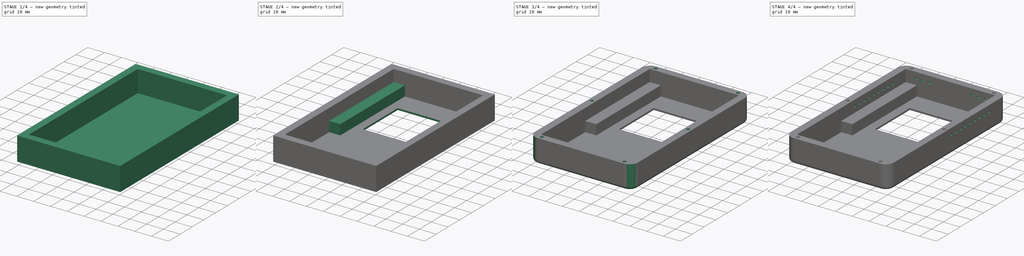
[diagram: build sequence overview — one tinted view per stage of 4, left to right]
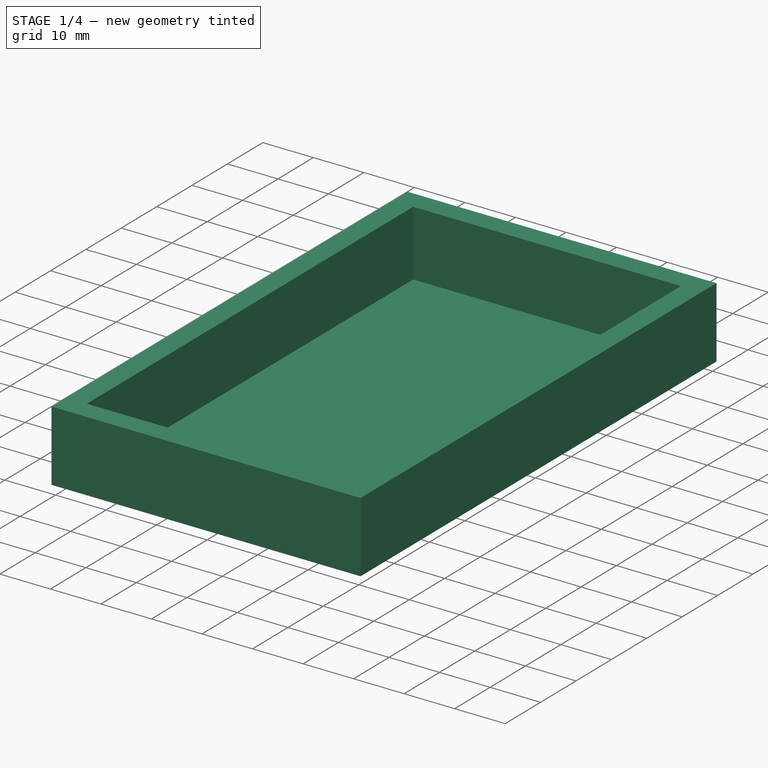
[diagram: stage 1 of 4 — iso view after this stage's code; geometry added in this stage tinted green]
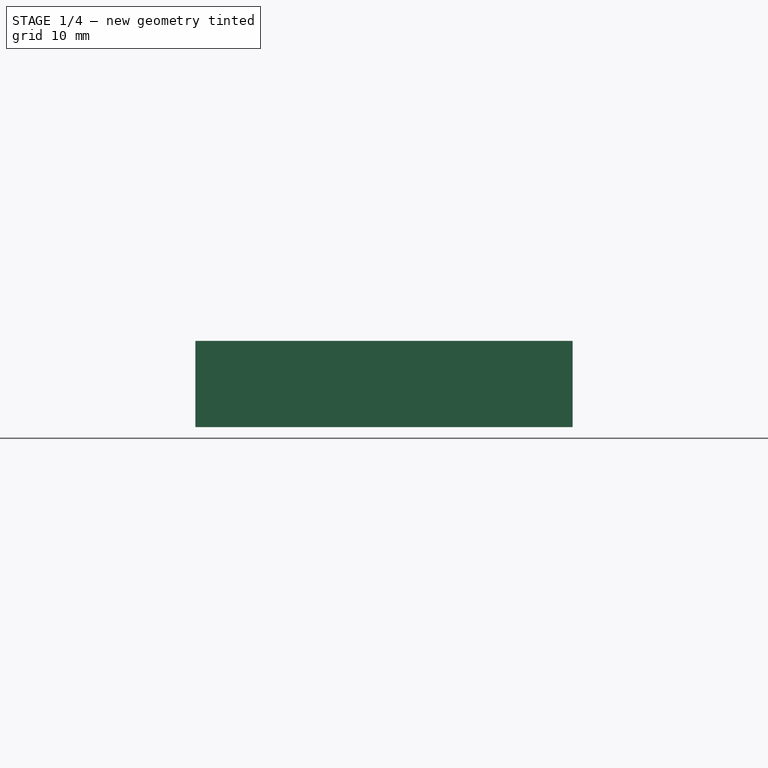
[diagram: stage 1 of 4 — front view after this stage's code; geometry added in this stage tinted green]
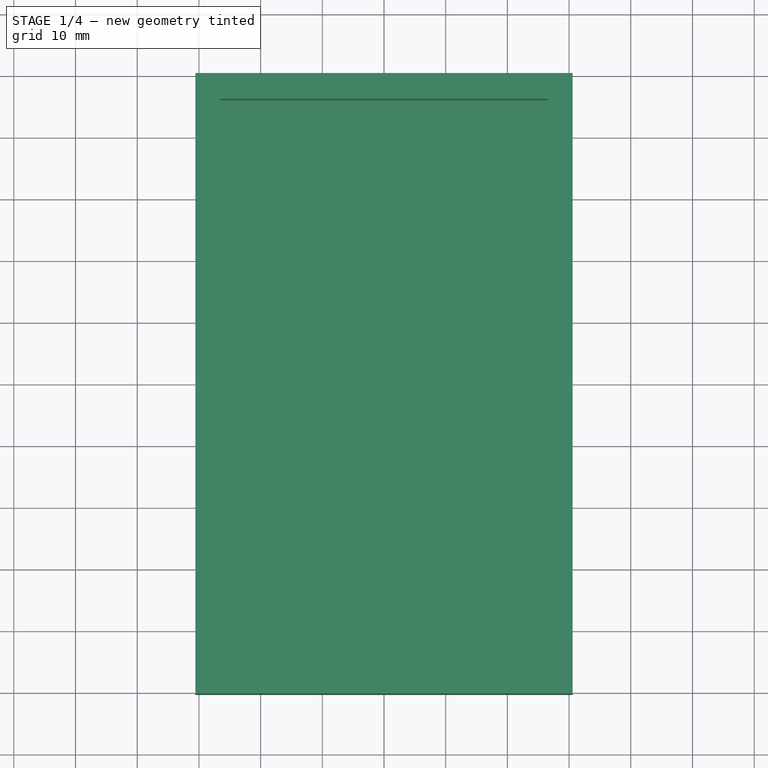
[diagram: stage 1 of 4 — top view after this stage's code; geometry added in this stage tinted green]
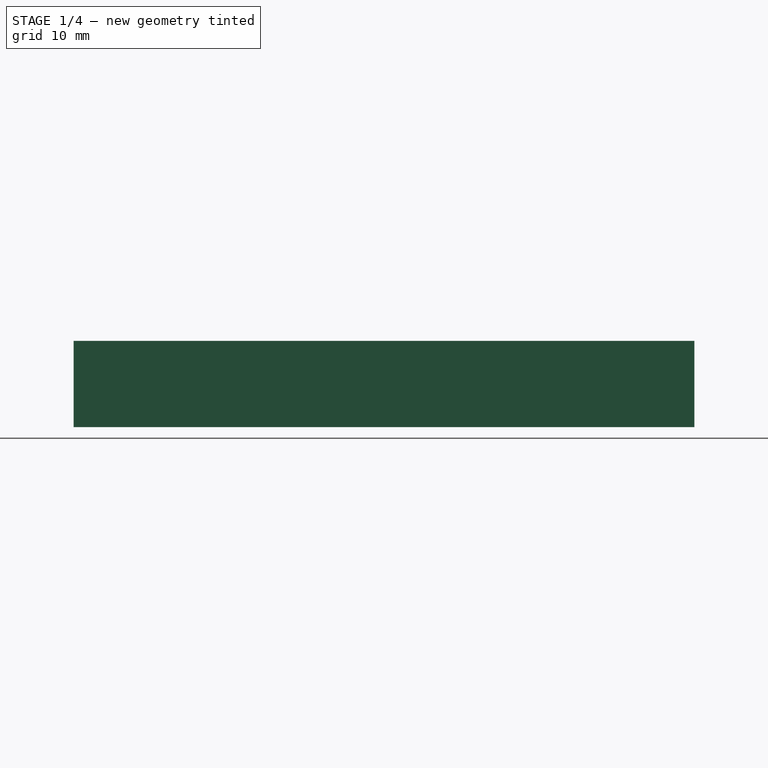
[diagram: stage 1 of 4 — right view after this stage's code; geometry added in this stage tinted green]
FCSTD DOCUMENT  (FreeCAD 0.20R29410 (Git))
Label: enclosure
License: All rights reserved
LicenseURL: http://en.wikipedia.org/wiki/All_rights_reserved
objects: Sketcher::SketchObject×7, PartDesign::Pocket×4, PartDesign::Pad×3, PartDesign::Fillet×2, App::Link×1, PartDesign::Body×1
note: 26 computed .brp shape members not serialized (recipe doc carries the construction recipe); baked Part::Feature solids carry a one-line shape summary decoded from their .brp

FEATURE [Sketcher::SketchObject] Sketch
  FullyConstrained = true
  MapMode = 5
  Support = -> [XY_Plane]
  sketch-geometry (4):
    g0: LineSegment StartX=-30.575 StartY=50.3 StartZ=0 EndX=30.575 EndY=50.3 EndZ=0
    g1: LineSegment StartX=30.575 StartY=50.3 StartZ=0 EndX=30.575 EndY=-50.3 EndZ=0
    g2: LineSegment StartX=30.575 StartY=-50.3 StartZ=0 EndX=-30.575 EndY=-50.3 EndZ=0
    g3: LineSegment StartX=-30.575 StartY=-50.3 StartZ=0 EndX=-30.575 EndY=50.3 EndZ=0
  constraints (10):
    c: Coincident(g0,g1)
    c: Coincident(g1,g2)
    c: Coincident(g2,g3)
    c: Coincident(g3,g0)
    c: Horizontal(g0)
    c: Vertical(g3)
    c: DistanceX(g2,g2) = 61.15
    c: Symmetric(g2,g1,g-2)
    c: DistanceY(g1,g1) = 100.6
    c: Symmetric(g0,g1,g-1)
FEATURE [PartDesign::Pad] Pad
  Direction = (0,0,1)
  Length = 1
  Length2 = 10
  Profile = -> Sketch
  ReferenceAxis = -> Sketch [N_Axis]
  Type = 0
FEATURE [Sketcher::SketchObject] Sketch001
  ExternalGeometry = -> [Pad]
  FullyConstrained = true
  MapMode = 5
  Placement = pos=(0,0,1) rot=(0,0,1;0rad)
  Support = -> [Pad]
  sketch-geometry (8):
    g0: LineSegment StartX=-26.5 StartY=46.1 StartZ=0 EndX=26.5 EndY=46.1 EndZ=0
    g1: LineSegment StartX=26.5 StartY=46.1 StartZ=0 EndX=26.5 EndY=-46.1 EndZ=0
    g2: LineSegment StartX=26.5 StartY=-46.1 StartZ=0 EndX=-26.5 EndY=-46.1 EndZ=0
    g3: LineSegment StartX=-26.5 StartY=-46.1 StartZ=0 EndX=-26.5 EndY=46.1 EndZ=0
    g4: LineSegment StartX=-30.575 StartY=50.3 StartZ=0 EndX=30.575 EndY=50.3 EndZ=0
    g5: LineSegment StartX=30.575 StartY=50.3 StartZ=0 EndX=30.575 EndY=-50.3 EndZ=0
    g6: LineSegment StartX=30.575 StartY=-50.3 StartZ=0 EndX=-30.575 EndY=-50.3 EndZ=0
    g7: LineSegment StartX=-30.575 StartY=-50.3 StartZ=0 EndX=-30.575 EndY=50.3 EndZ=0
  constraints (20):
    c: Coincident(g0,g1)
    c: Coincident(g1,g2)
    c: Coincident(g2,g3)
    c: Coincident(g3,g0)
    c: Horizontal(g0)
    c: Vertical(g1)
    c: Coincident(g4,g5)
    c: Coincident(g5,g6)
    c: Coincident(g6,g7)
    c: Coincident(g7,g4)
    c: Horizontal(g4)
    c: Horizontal(g6)
    c: Vertical(g5)
    c: Vertical(g7)
    c: Coincident(g4,g-3)
    c: Coincident(g5,g-4)
    c: DistanceX(g0,g0) = 53
    c: DistanceY(g1,g1) = 92.2
    c: Symmetric(g2,g1,g-2)
    c: Symmetric(g0,g2,g-1)
FEATURE [PartDesign::Pad] Pad001
  BaseFeature = -> Pad
  Direction = (0,0,1)
  Length = 13
  Length2 = 10
  Profile = -> Sketch001
  ReferenceAxis = -> Sketch001 [N_Axis]
  Type = 0
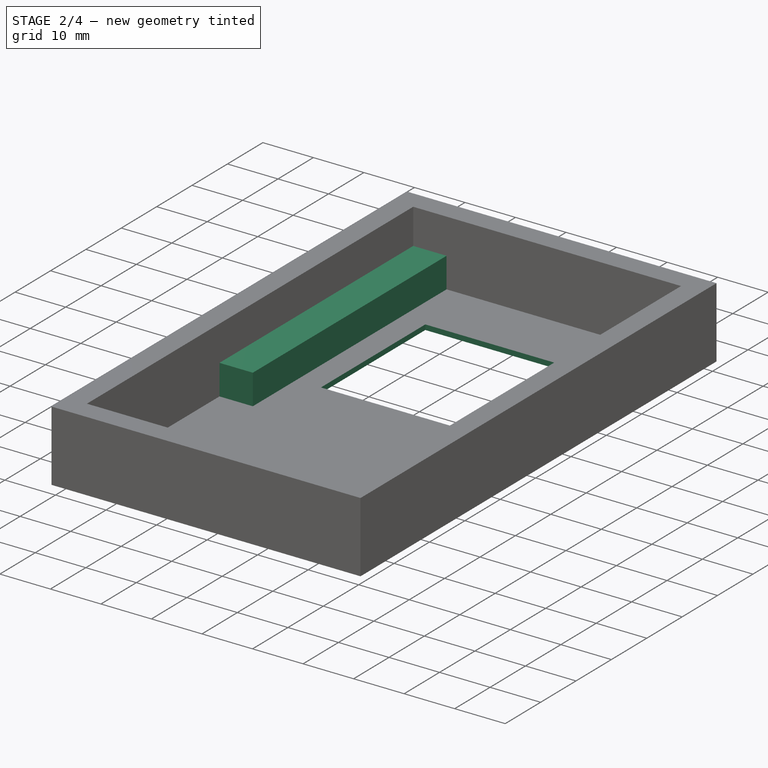
[diagram: stage 2 of 4 — iso view after this stage's code; geometry added in this stage tinted green]
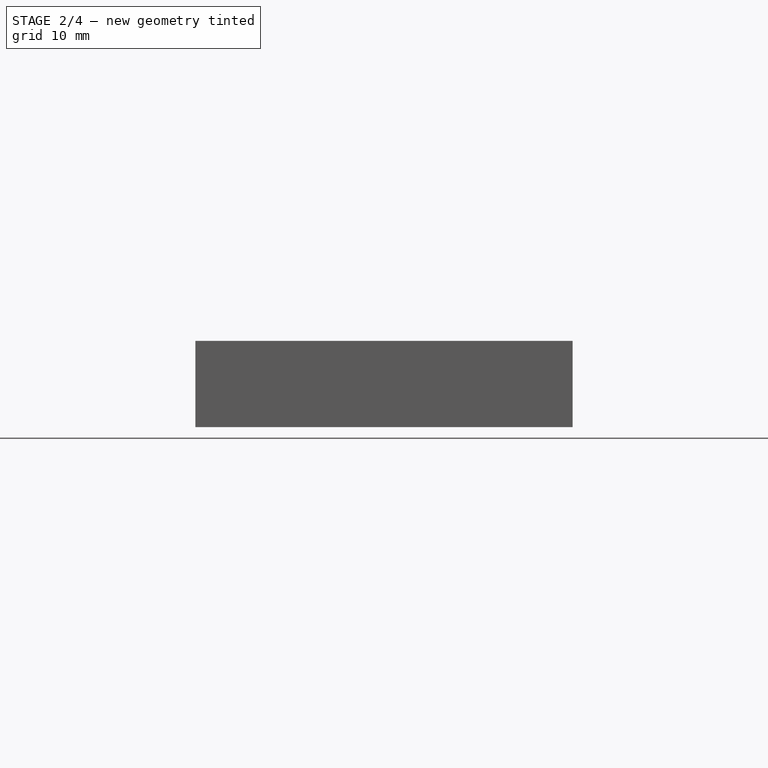
[diagram: stage 2 of 4 — front view after this stage's code; geometry added in this stage tinted green]
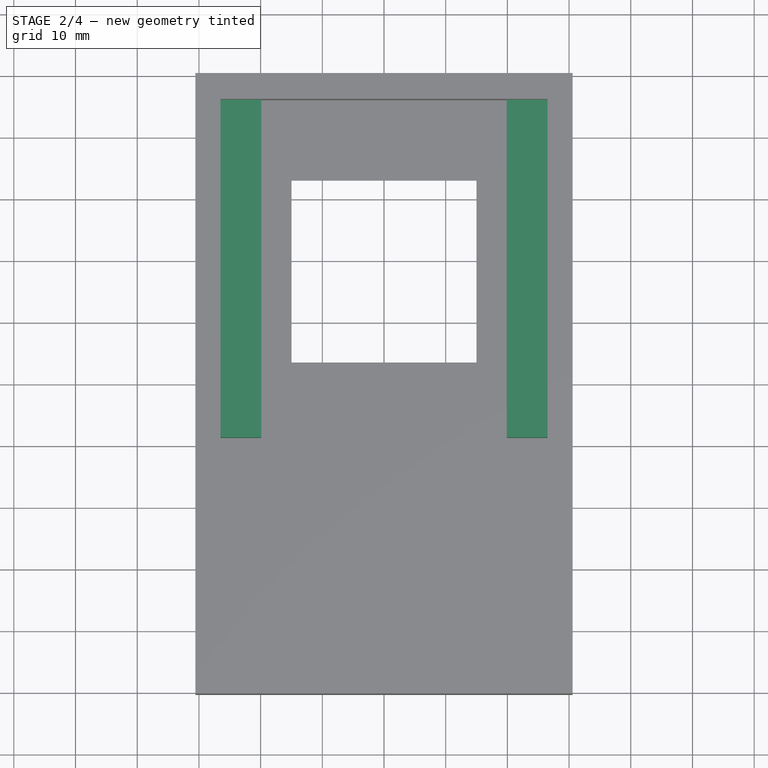
[diagram: stage 2 of 4 — top view after this stage's code; geometry added in this stage tinted green]
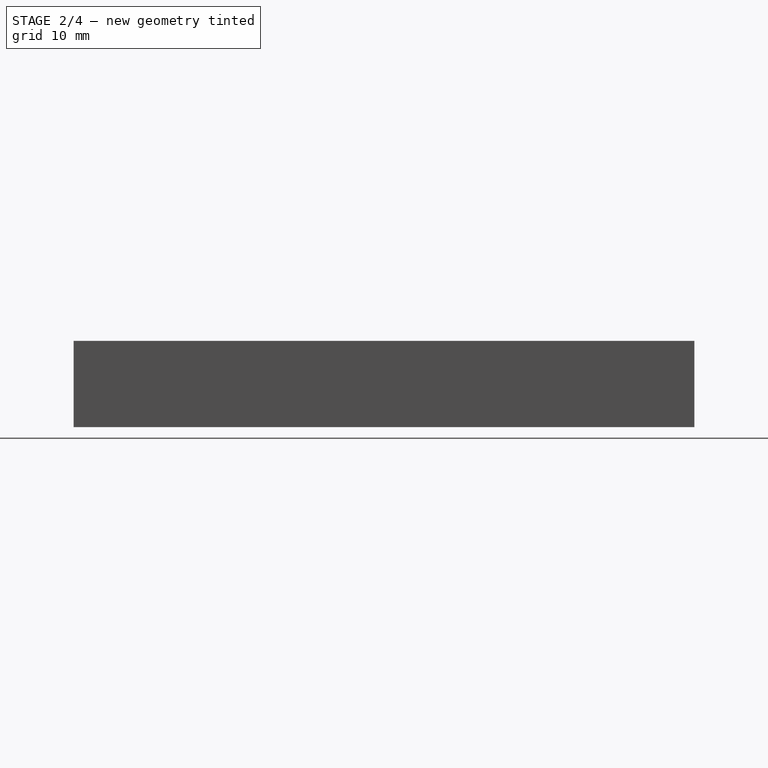
[diagram: stage 2 of 4 — right view after this stage's code; geometry added in this stage tinted green]
FEATURE [App::Link] Link  label="enclosure001"
  LinkedObject = -> Body
FEATURE [Sketcher::SketchObject] Sketch002
  ExternalGeometry = -> [Pad001]
  FullyConstrained = true
  MapMode = 5
  Placement = pos=(0,0,1) rot=(0,0,1;0rad)
  Support = -> [Pad001]
  sketch-geometry (8):
    g0: LineSegment StartX=19.9 StartY=46.1 StartZ=0 EndX=26.5 EndY=46.1 EndZ=0
    g1: LineSegment StartX=26.5 StartY=46.1 StartZ=0 EndX=26.5 EndY=-8.65 EndZ=0
    g2: LineSegment StartX=26.5 StartY=-8.65 StartZ=0 EndX=19.9 EndY=-8.65 EndZ=0
    g3: LineSegment StartX=19.9 StartY=-8.65 StartZ=0 EndX=19.9 EndY=46.1 EndZ=0
    g4: LineSegment StartX=-19.9 StartY=46.1 StartZ=0 EndX=-26.5 EndY=46.1 EndZ=0
    g5: LineSegment StartX=-26.5 StartY=46.1 StartZ=0 EndX=-26.5 EndY=-8.65 EndZ=0
    g6: LineSegment StartX=-26.5 StartY=-8.65 StartZ=0 EndX=-19.9 EndY=-8.65 EndZ=0
    g7: LineSegment StartX=-19.9 StartY=-8.65 StartZ=0 EndX=-19.9 EndY=46.1 EndZ=0
  constraints (21):
    c: Coincident(g0,g1)
    c: Coincident(g1,g2)
    c: Coincident(g2,g3)
    c: Coincident(g3,g0)
    c: Horizontal(g0)
    c: Horizontal(g2)
    c: Vertical(g1)
    c: Vertical(g3)
    c: Coincident(g0,g-3)
    c: Coincident(g4,g5)
    c: Coincident(g5,g6)
    c: Coincident(g6,g7)
    c: Coincident(g7,g4)
    c: Horizontal(g6)
    c: Vertical(g5)
    c: Vertical(g7)
    c: Coincident(g4,g-4)
    c: DistanceX(g4,g0) = 39.8
    c: DistanceY(g3,g3) = 54.75
    c: Equal(g7,g3)
    c: Symmetric(g4,g0,g-2)
FEATURE [PartDesign::Pad] Pad002
  BaseFeature = -> Pad001
  Direction = (0,0,1)
  Length = 6
  Length2 = 10
  Profile = -> Sketch002
  ReferenceAxis = -> Sketch002 [N_Axis]
  Type = 0
FEATURE [Sketcher::SketchObject] Sketch003
  ExternalGeometry = -> [Pad002]
  FullyConstrained = true
  MapMode = 5
  Placement = pos=(0,0,1) rot=(0,0,1;0rad)
  Support = -> [Pad002]
  sketch-geometry (4):
    g0: LineSegment StartX=-15 StartY=33.1 StartZ=0 EndX=15 EndY=33.1 EndZ=0
    g1: LineSegment StartX=15 StartY=33.1 StartZ=0 EndX=15 EndY=3.6 EndZ=0
    g2: LineSegment StartX=15 StartY=3.6 StartZ=0 EndX=-15 EndY=3.6 EndZ=0
    g3: LineSegment StartX=-15 StartY=3.6 StartZ=0 EndX=-15 EndY=33.1 EndZ=0
  constraints (12):
    c: Coincident(g0,g1)
    c: Coincident(g1,g2)
    c: Coincident(g2,g3)
    c: Coincident(g3,g0)
    c: Horizontal(g2)
    c: Vertical(g1)
    c: Vertical(g3)
    c: DistanceX(g0,g0) = 30
    c: DistanceY(g0,g-3) = 13
    c: DistanceY(g1,g1) = 29.5
    c: DistanceX(g-1,g0) = 15
    c: Horizontal(g0)
FEATURE [PartDesign::Pocket] Pocket
  BaseFeature = -> Pad002
  Direction = (0,0,-1)
  Length = 0
  Length2 = 5
  Profile = -> Sketch003
  ReferenceAxis = -> Sketch003 [N_Axis]
  Type = 3
  UpToFace = -> Pad002 [Face4]
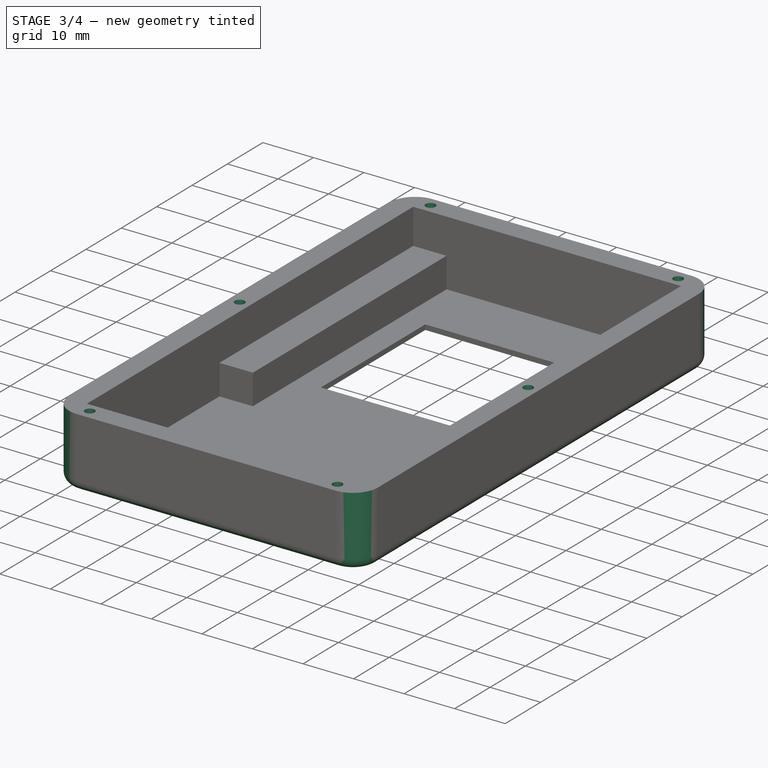
[diagram: stage 3 of 4 — iso view after this stage's code; geometry added in this stage tinted green]
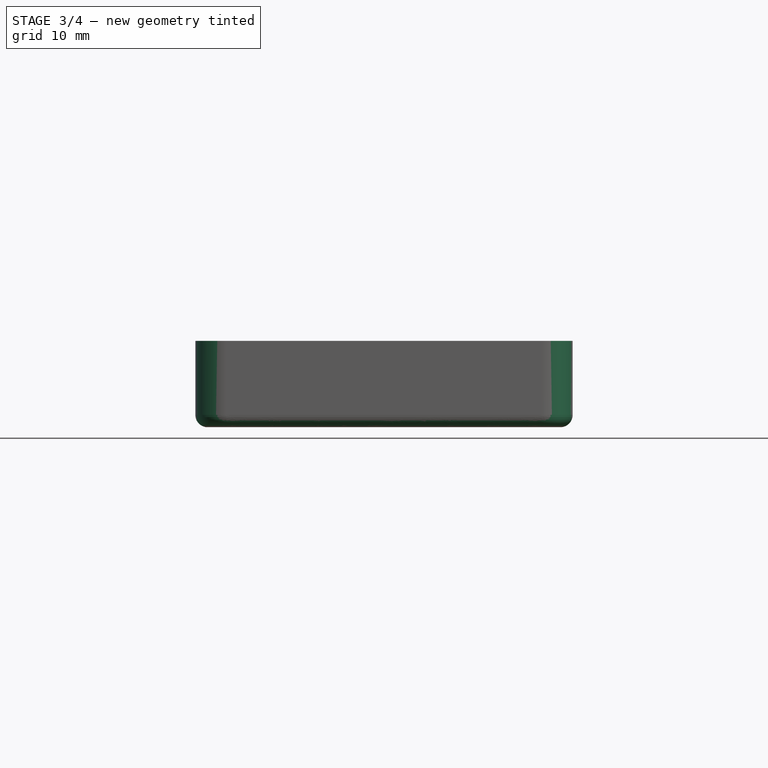
[diagram: stage 3 of 4 — front view after this stage's code; geometry added in this stage tinted green]
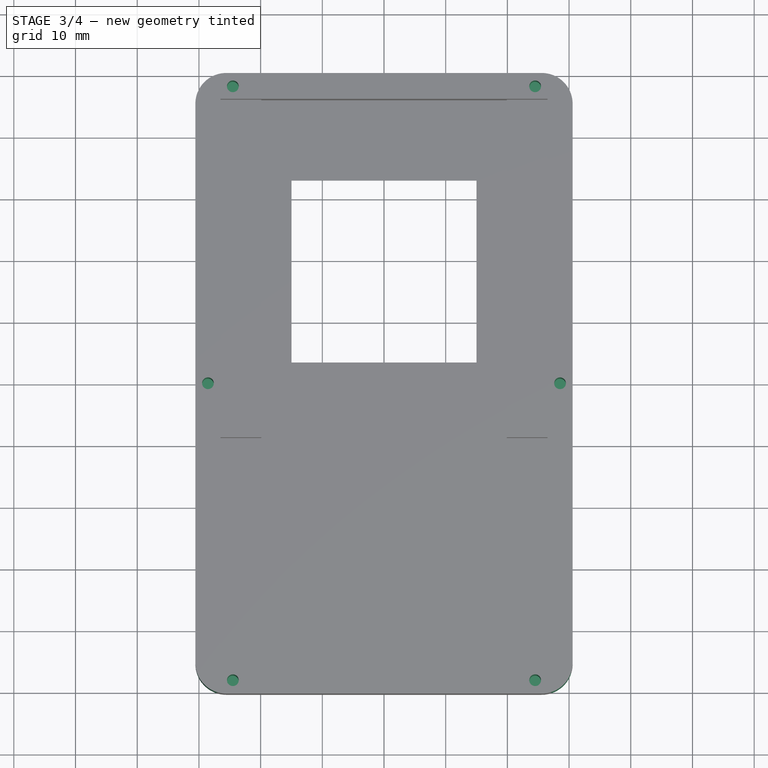
[diagram: stage 3 of 4 — top view after this stage's code; geometry added in this stage tinted green]
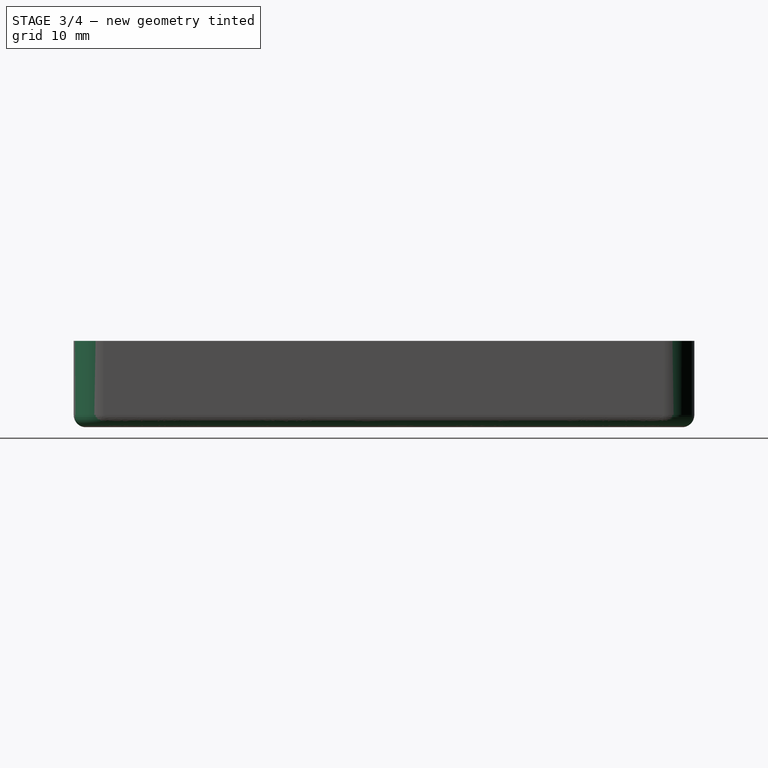
[diagram: stage 3 of 4 — right view after this stage's code; geometry added in this stage tinted green]
FEATURE [PartDesign::Fillet] Fillet
  Base = -> Pocket [Edge22,Edge8,Edge20,Edge5,Edge16,Edge1,Edge17,Edge2]
  BaseFeature = -> Pocket
  Radius = 5
  SupportTransform = false
  UseAllEdges = false
FEATURE [PartDesign::Fillet] Fillet001
  Base = -> Fillet [Edge1,Edge5,Edge7]
  BaseFeature = -> Fillet
  Radius = 1.99
  SupportTransform = false
  UseAllEdges = false
FEATURE [Sketcher::SketchObject] Sketch005
  ExternalGeometry = -> [Fillet001]
  FullyConstrained = false
  MapMode = 5
  Placement = pos=(0,0,14) rot=(0,0,1;0rad)
  Support = -> [Fillet001]
  sketch-geometry (7):
    g0: Circle CenterX=24.5 CenterY=48.1375 CenterZ=0 NormalX=0 NormalY=0 NormalZ=1 AngleXU=0 Radius=0.95
    g1: LineSegment StartX=22.4501 StartY=48.1375 StartZ=0 EndX=27.765 EndY=48.1375 EndZ=0
    g2: Circle CenterX=-24.5 CenterY=48.1375 CenterZ=0 NormalX=0 NormalY=0 NormalZ=1 AngleXU=0 Radius=0.95
    g3: Circle CenterX=-24.5 CenterY=-48.1375 CenterZ=0 NormalX=0 NormalY=0 NormalZ=1 AngleXU=0 Radius=0.95
    g4: Circle CenterX=24.5 CenterY=-48.1375 CenterZ=0 NormalX=0 NormalY=0 NormalZ=1 AngleXU=0 Radius=0.95
    g5: Circle CenterX=28.5375 CenterY=0 CenterZ=0 NormalX=0 NormalY=0 NormalZ=1 AngleXU=0 Radius=0.95
    g6: Circle CenterX=-28.5375 CenterY=0 CenterZ=0 NormalX=0 NormalY=0 NormalZ=1 AngleXU=0 Radius=0.95
  constraints (22):
    c: Diameter(g0) = 1.9
    c: Horizontal(g1)
    c: PointOnObject(g0,g1)
    c: DistanceX(g0,g-3) = 2
    c: DistanceY(g-3,g-5) = 4.2
    c: DistanceY(g-3,g2) = 2.0375
    c: DistanceX(g-3,g2) = 2
    c: DistanceX(g4,g-4) = 2
    c: DistanceY(g4,g-4) = 2.0375
    c: DistanceX(g-4,g3) = 2
    c: DistanceY(g3,g-4) = 2.0375
    c: DistanceX(g5,g-7) = 2.0375
    c: DistanceX(g-6,g-7) = 4.075
    c: DistanceX(g6,g-8) = 2.0375
    c: PointOnObject(g6,g-1)
    c: PointOnObject(g5,g-1)
    c: Equal(g4,g3)
    c: Equal(g3,g6)
    c: Equal(g6,g5)
    c: Equal(g5,g2)
    c: Equal(g2,g0)
    c: DistanceY(g-6,g0) = 2.0375
FEATURE [PartDesign::Pocket] Pocket001
  BaseFeature = -> Fillet001
  Direction = (0,0,-1)
  Length = 12
  Length2 = 5
  Profile = -> Sketch005
  ReferenceAxis = -> Sketch005 [N_Axis]
  Type = 0
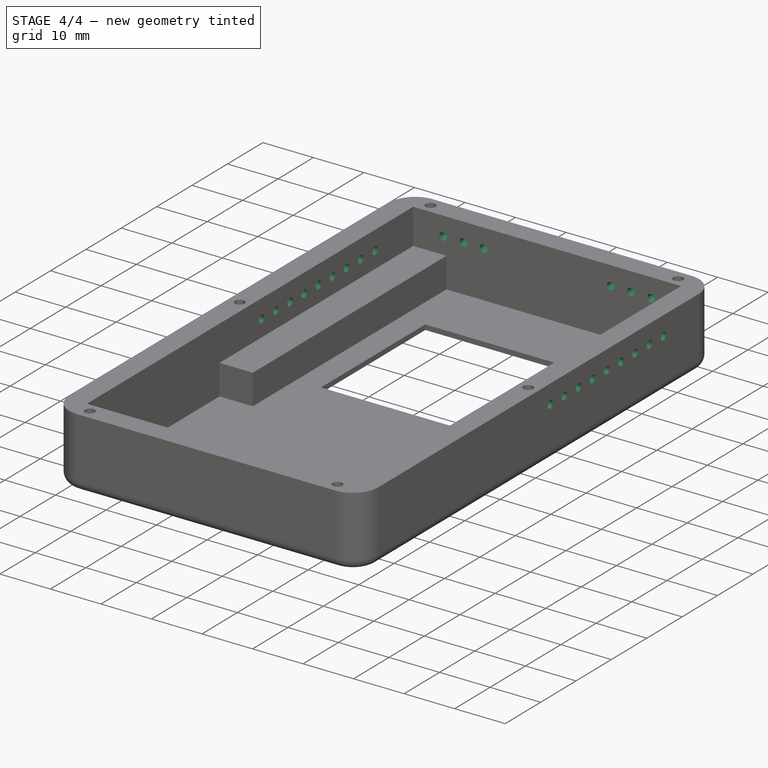
[diagram: stage 4 of 4 — iso view after this stage's code; geometry added in this stage tinted green]
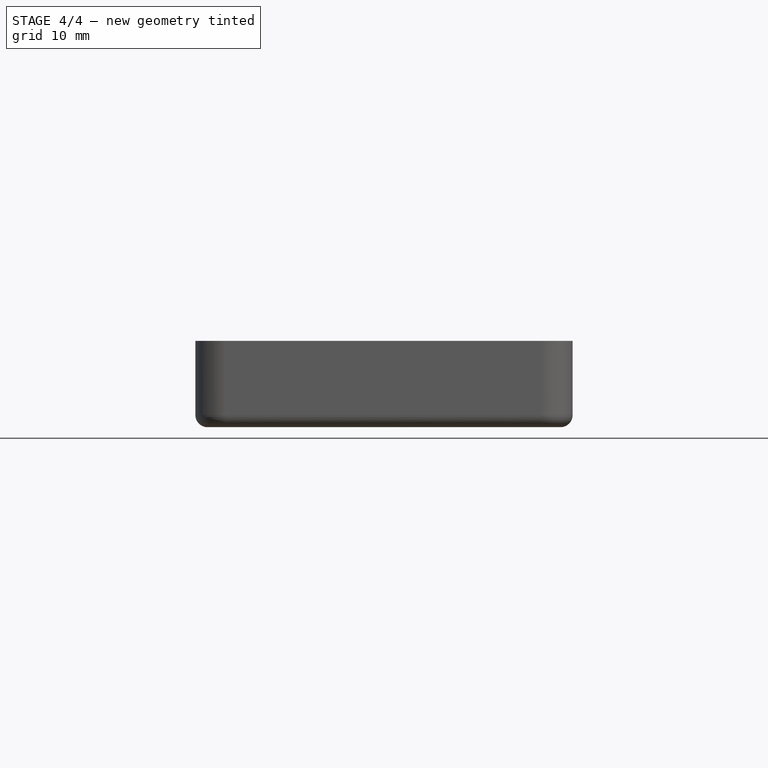
[diagram: stage 4 of 4 — front view after this stage's code; geometry added in this stage tinted green]
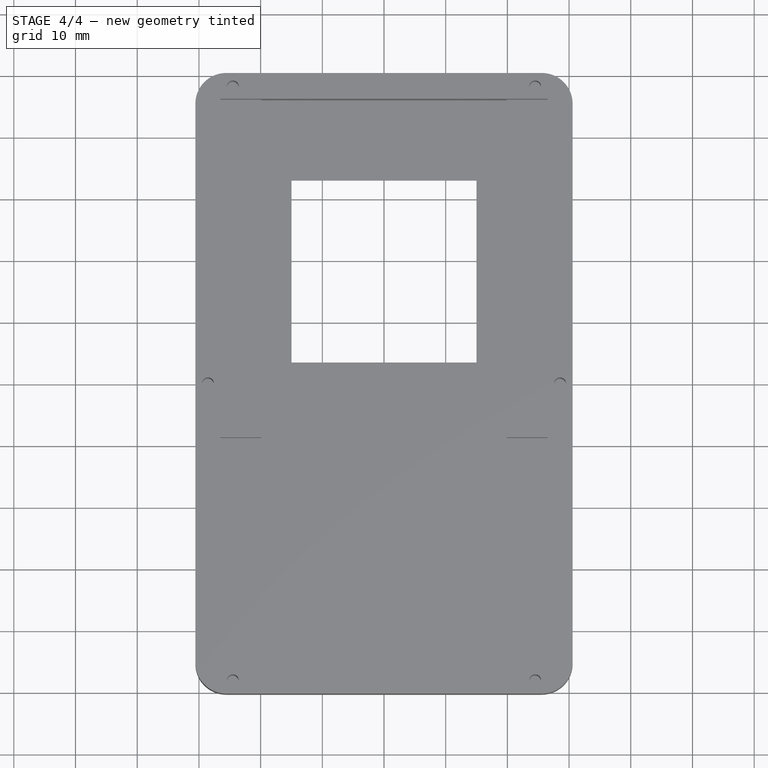
[diagram: stage 4 of 4 — top view after this stage's code; geometry added in this stage tinted green]
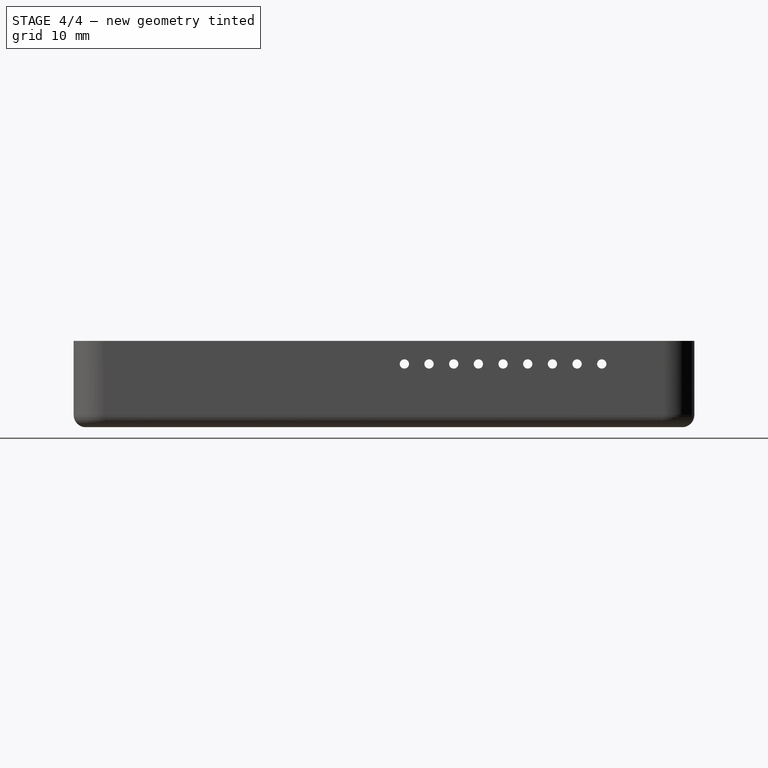
[diagram: stage 4 of 4 — right view after this stage's code; geometry added in this stage tinted green]
FEATURE [Sketcher::SketchObject] Sketch006
  ExternalGeometry = -> [Pocket001]
  FullyConstrained = false
  MapMode = 5
  Placement = pos=(30.575,0,0) rot=(0.57735,0.57735,0.57735;2.0944rad)
  Support = -> [Pocket001]
  sketch-geometry (11):
    g0: Circle CenterX=35.3 CenterY=10.25 CenterZ=0 NormalX=0 NormalY=0 NormalZ=1 AngleXU=0 Radius=0.75
    g1: LineSegment StartX=43.65 StartY=10.25 StartZ=0 EndX=-17.2822 EndY=10.25 EndZ=0
    g2: Circle CenterX=31.3 CenterY=10.25 CenterZ=0 NormalX=0 NormalY=0 NormalZ=1 AngleXU=0 Radius=0.75
    g3: Circle CenterX=23.3 CenterY=10.25 CenterZ=0 NormalX=0 NormalY=0 NormalZ=1 AngleXU=0 Radius=0.75
    g4: Circle CenterX=27.3 CenterY=10.25 CenterZ=0 NormalX=0 NormalY=0 NormalZ=1 AngleXU=0 Radius=0.75
    g5: LineSegment StartX=-6.35 StartY=11.7225 StartZ=0 EndX=-6.35 EndY=9.03689 EndZ=0
    g6: Circle CenterX=15.3 CenterY=10.25 CenterZ=0 NormalX=0 NormalY=0 NormalZ=1 AngleXU=0 Radius=0.75
    g7: Circle CenterX=19.3 CenterY=10.25 CenterZ=0 NormalX=0 NormalY=0 NormalZ=1 AngleXU=0 Radius=0.75
    g8: Circle CenterX=7.3 CenterY=10.25 CenterZ=0 NormalX=0 NormalY=0 NormalZ=1 AngleXU=0 Radius=0.75
    g9: Circle CenterX=11.3 CenterY=10.25 CenterZ=0 NormalX=0 NormalY=0 NormalZ=1 AngleXU=0 Radius=0.75
    g10: Circle CenterX=3.3 CenterY=10.25 CenterZ=0 NormalX=0 NormalY=0 NormalZ=1 AngleXU=0 Radius=0.75
  constraints (30):
    c: Diameter(g0) = 1.5
    c: Horizontal(g1)
    c: DistanceY(g1,g-3) = 3.75
    c: PointOnObject(g0,g1)
    c: PointOnObject(g2,g1)
    c: PointOnObject(g4,g1)
    c: Vertical(g5)
    c: DistanceX(g3,g4) = 4
    c: DistanceX(g4,g2) = 4
    c: DistanceX(g2,g0) = 4
    c: PointOnObject(g3,g1)
    c: DistanceX(g6,g7) = 4
    c: PointOnObject(g7,g1)
    c: DistanceX(g7,g3) = 4
    c: PointOnObject(g6,g1)
    c: PointOnObject(g8,g1)
    c: Equal(g6,g7)
    c: Equal(g7,g3)
    c: Equal(g3,g4)
    c: Equal(g4,g2)
    c: Equal(g2,g0)
    c: DistanceX(g0,g-5) = 10
    c: PointOnObject(g9,g1)
    c: Equal(g9,g0)
    c: DistanceX(g9,g6) = 4
    c: DistanceX(g8,g9) = 4
    c: Equal(g8,g0)
    c: PointOnObject(g10,g1)
    c: DistanceX(g10,g8) = 4
    c: Equal(g10,g0)
FEATURE [PartDesign::Pocket] Pocket002
  BaseFeature = -> Pocket001
  Direction = (-1,0,0)
  Length = 0
  Length2 = 5
  Profile = -> Sketch006
  ReferenceAxis = -> Sketch006 [N_Axis]
  Type = 3
  UpToFace = -> Pocket001 [Face17]
FEATURE [Sketcher::SketchObject] Sketch007
  ExternalGeometry = -> [Pocket002]
  FullyConstrained = false
  MapMode = 5
  Placement = pos=(0,50.3,0) rot=(0,0.707107,0.707107;3.14159rad)
  Support = -> [Pocket002]
  sketch-geometry (7):
    g0: LineSegment StartX=-25.575 StartY=10.25 StartZ=0 EndX=25.575 EndY=10.25 EndZ=0
    g1: Circle CenterX=20.575 CenterY=10.25 CenterZ=0 NormalX=0 NormalY=0 NormalZ=1 AngleXU=0 Radius=0.75
    g2: Circle CenterX=16.575 CenterY=10.25 CenterZ=0 NormalX=0 NormalY=0 NormalZ=1 AngleXU=0 Radius=0.75
    g3: Circle CenterX=12.575 CenterY=10.25 CenterZ=0 NormalX=0 NormalY=0 NormalZ=1 AngleXU=0 Radius=0.75
    g4: Circle CenterX=-20.575 CenterY=10.25 CenterZ=0 NormalX=0 NormalY=0 NormalZ=1 AngleXU=0 Radius=0.75
    g5: Circle CenterX=-16.575 CenterY=10.25 CenterZ=0 NormalX=0 NormalY=0 NormalZ=1 AngleXU=0 Radius=0.75
    g6: Circle CenterX=-12.575 CenterY=10.25 CenterZ=0 NormalX=0 NormalY=0 NormalZ=1 AngleXU=0 Radius=0.75
  constraints (21):
    c: Horizontal(g0)
    c: PointOnObject(g1,g0)
    c: Diameter(g1) = 1.5
    c: PointOnObject(g2,g0)
    c: DistanceX(g2,g1) = 4
    c: PointOnObject(g3,g0)
    c: DistanceX(g3,g2) = 4
    c: DistanceX(g4,g5) = 4
    c: DistanceX(g5,g6) = 4
    c: PointOnObject(g5,g0)
    c: PointOnObject(g6,g0)
    c: PointOnObject(g4,g0)
    c: Equal(g4,g5)
    c: Equal(g5,g6)
    c: Equal(g6,g1)
    c: Equal(g1,g2)
    c: Equal(g2,g3)
    c: DistanceX(g1,g0) = 5
    c: DistanceY(g0,g-4) = 3.75
    c: PointOnObject(g0,g-4)
    c: DistanceX(g-5,g4) = 5
FEATURE [PartDesign::Pocket] Pocket003
  BaseFeature = -> Pocket002
  Direction = (0,-1,2e-16)
  Length = 0
  Length2 = 5
  Profile = -> Sketch007
  ReferenceAxis = -> Sketch007 [N_Axis]
  Type = 3
  UpToFace = -> Pocket002 [Face42]
FEATURE [PartDesign::Body] Body  label="enclosure"
  Group = -> [Sketch,Pad,Sketch001,Pad001,Sketch002,Pad002,Sketch003,Pocket,Fillet,Fillet001,Sketch005,Pocket001,Sketch006,Pocket002,Sketch007,Pocket003]
  Origin = -> Origin
  Tip = -> Pocket003
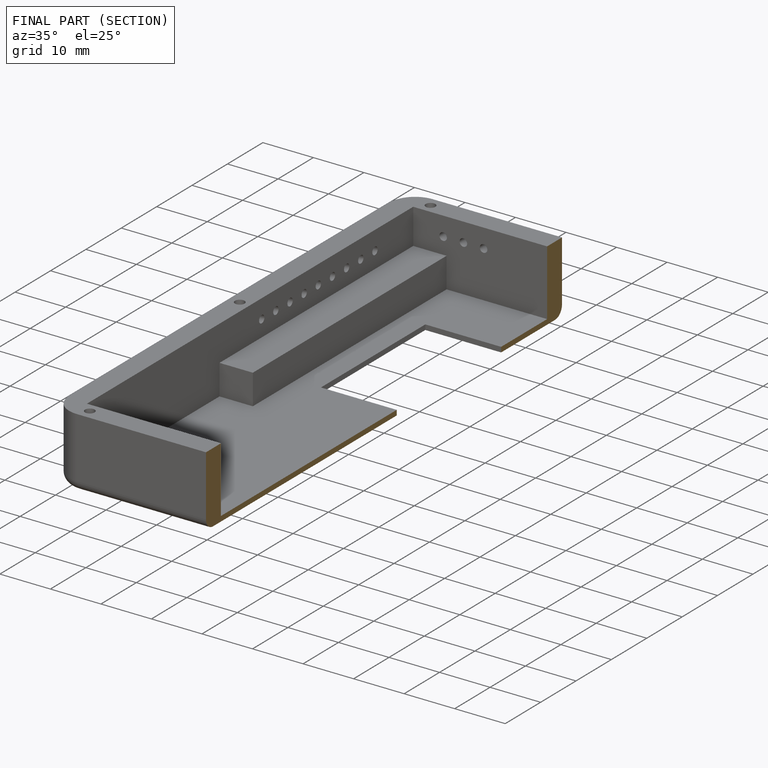
[diagram: finished part — half-section view (interior)]
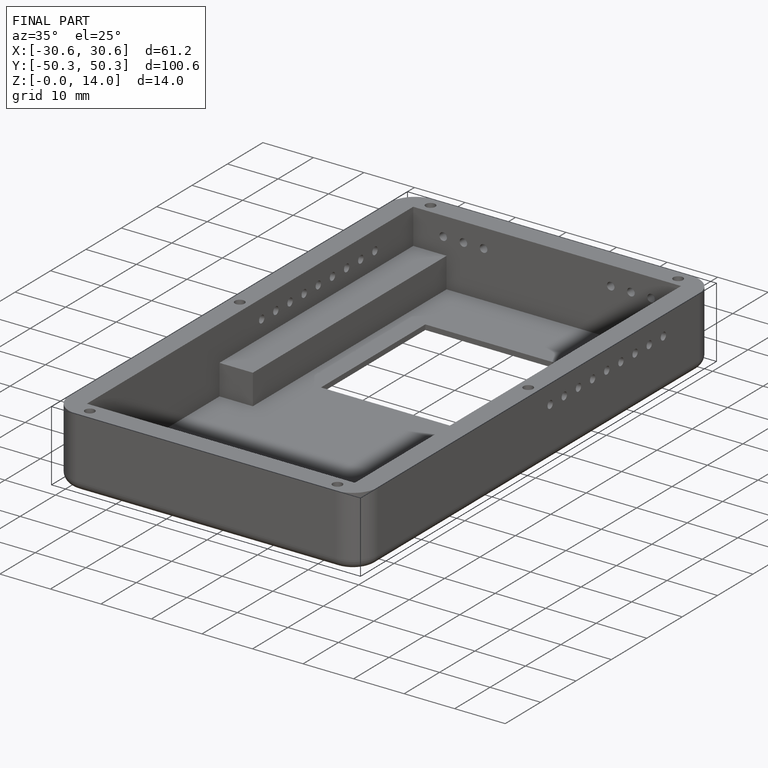
[diagram: finished part — iso view with bounding-box wireframe]
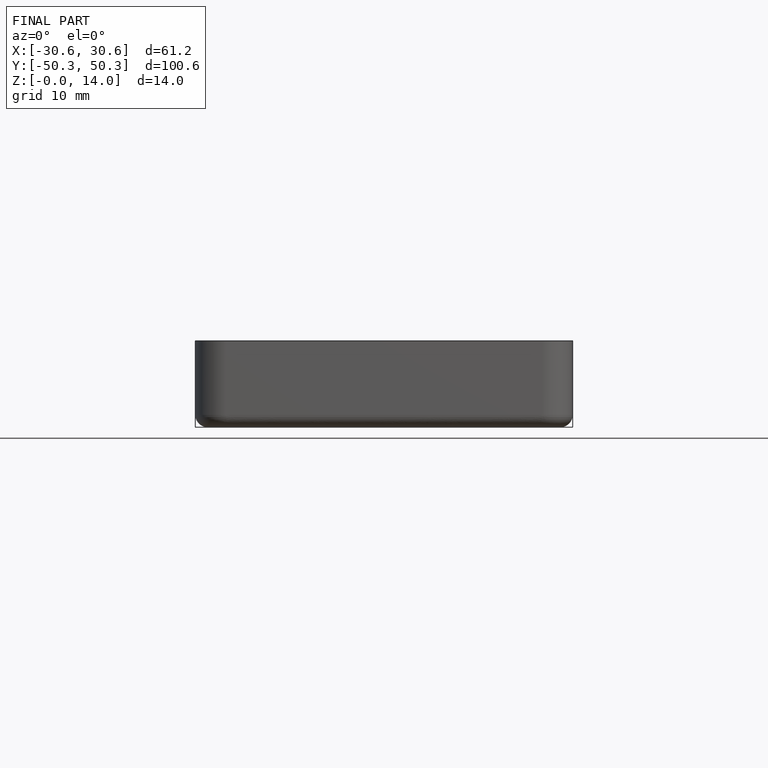
[diagram: finished part — front view with bounding-box wireframe]
